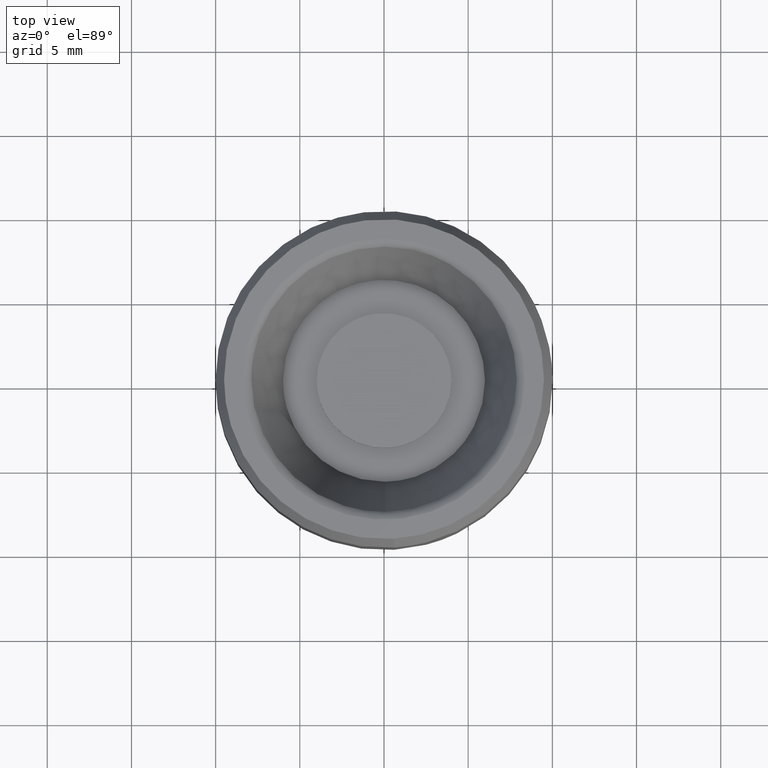
[diagram: clean part render]
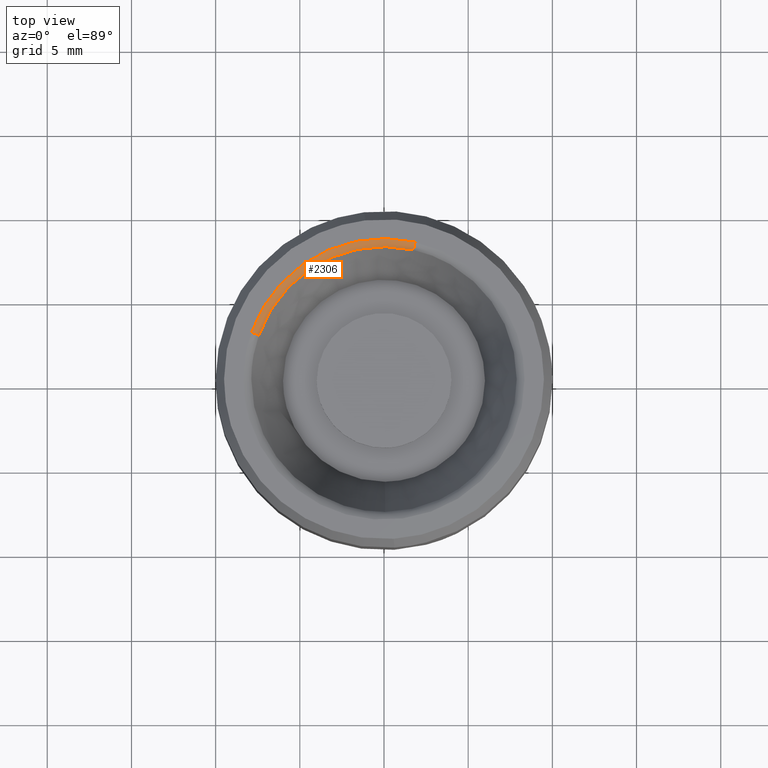
[diagram: same view with one face highlighted and labeled with its STEP entity id]
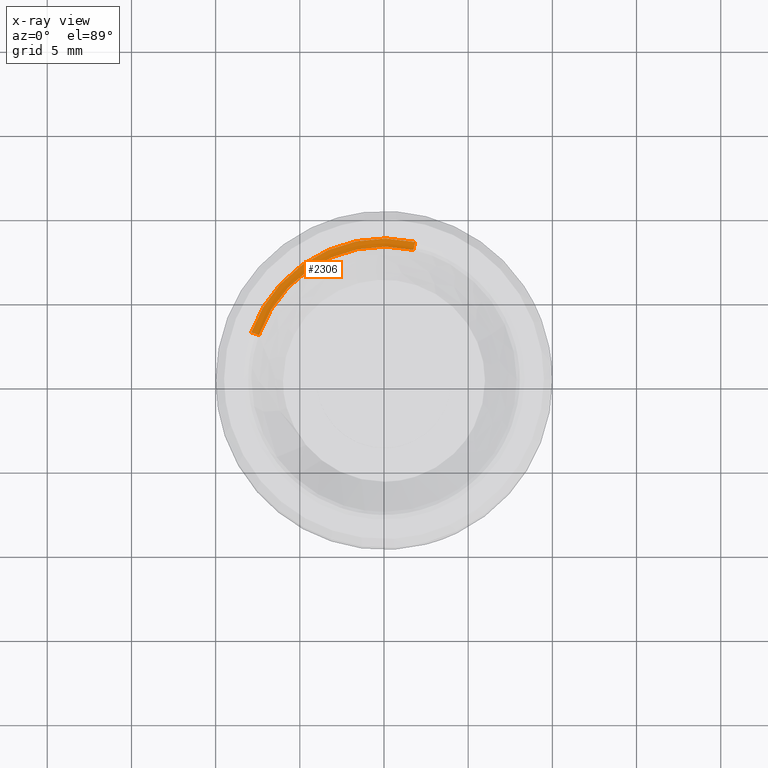
[diagram: x-ray of the same camera — body ghosted, the highlighted face saturated]
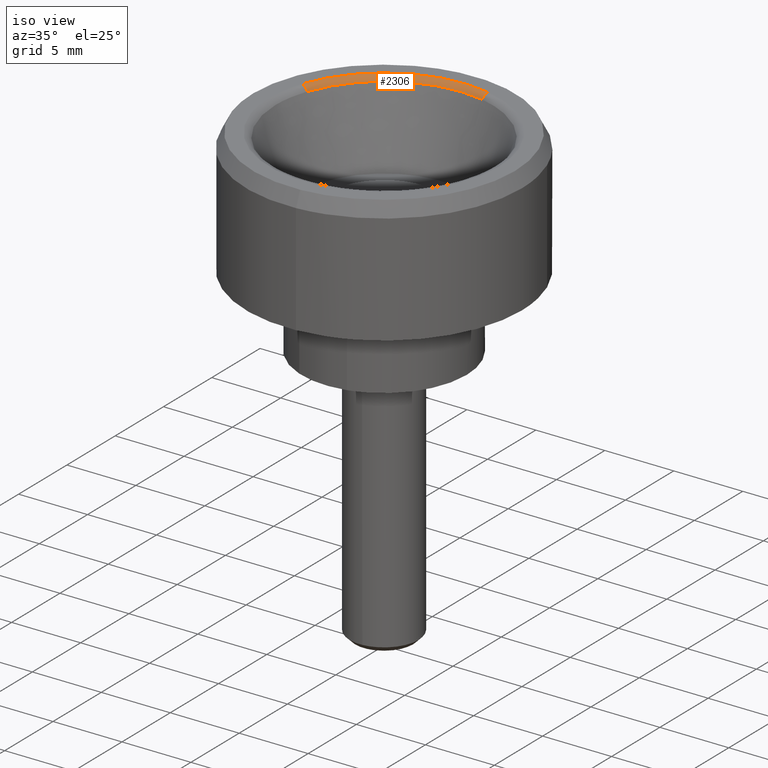
[diagram: same view with one face highlighted and labeled with its STEP entity id]
A machine part, top view. The second image highlights one B-rep face of the part: STEP entity #2306.
The next image is the same camera in x-ray: the body ghosted, the highlighted face saturated — about 0% of this face is hidden behind the body in this view.
A second angle (iso view) of the same face is appended — the face is thin or edge-on in the first view.
In plain terms, the highlighted face is a freeform B-spline surface patch.
Its self-contained STEP definition (entity closure, byte-faithful):
#684=CARTESIAN_POINT('',(1.747159656468593,7.684193380239639,14.670871531827229));
#685=VERTEX_POINT('',#684);
#699=CARTESIAN_POINT('',(-7.431064276170545,2.622723488301546,14.670871532273310));
#700=VERTEX_POINT('',#699);
#701=CARTESIAN_POINT('',(1.747159656468594,7.684193380239639,14.670871531827231));
#702=CARTESIAN_POINT('',(0.884587535209432,7.880316920561219,14.670871531543437));
#703=CARTESIAN_POINT('',(0.0,7.880316920561219,14.670871531543440));
#704=CARTESIAN_POINT('',(-5.575446658499355,7.880316920561218,14.670871531543439));
#705=CARTESIAN_POINT('',(-7.431064276170544,2.622723488301546,14.670871532273308));
#713=(BOUNDED_CURVE()B_SPLINE_CURVE(2,(#701,#702,#703,#704,#705),.UNSPECIFIED.,.F.,.U.)B_SPLINE_CURVE_WITH_KNOTS((3,2,3),(0.712075985374197,0.750000000000000,0.943451214484055),.UNSPECIFIED.)CURVE()GEOMETRIC_REPRESENTATION_ITEM()RATIONAL_B_SPLINE_CURVE((0.924618444636276,0.955569253143680,1.0,0.773357804425575,0.897469272748791))REPRESENTATION_ITEM(''));
#714=EDGE_CURVE('',#685,#700,#713,.T.);
#2191=CARTESIAN_POINT('',(-7.874172427045540,2.779114297499475,15.0));
#2192=VERTEX_POINT('',#2191);
#2193=CARTESIAN_POINT('',(-7.431064276170545,2.622723488301546,14.670871532273313));
#2194=CARTESIAN_POINT('',(-7.543924287782197,2.662556356409521,14.999999998680599));
#2195=CARTESIAN_POINT('',(-7.874172427045540,2.779114297499475,15.000000000000004));
#2203=(BOUNDED_CURVE()B_SPLINE_CURVE(2,(#2193,#2194,#2195),.UNSPECIFIED.,.F.,.U.)B_SPLINE_CURVE_WITH_KNOTS((3,3),(-1.672020088382184,-0.331586708002150),.UNSPECIFIED.)CURVE()GEOMETRIC_REPRESENTATION_ITEM()RATIONAL_B_SPLINE_CURVE((0.900583652010158,0.737279750788888,0.899707184281507))REPRESENTATION_ITEM(''));
#2204=EDGE_CURVE('',#700,#2192,#2203,.T.);
#2238=CARTESIAN_POINT('',(1.851341326446082,8.142395408669891,15.0));
#2239=VERTEX_POINT('',#2238);
#2253=CARTESIAN_POINT('',(1.747159656468593,7.684193380239639,14.670871531827228));
#2254=CARTESIAN_POINT('',(1.773694813654353,7.800897814469852,14.999999999412507));
#2255=CARTESIAN_POINT('',(1.851341326446081,8.142395408669893,15.000000000000004));
#2263=(BOUNDED_CURVE()B_SPLINE_CURVE(2,(#2253,#2254,#2255),.UNSPECIFIED.,.F.,.U.)B_SPLINE_CURVE_WITH_KNOTS((3,3),(-1.672020090601311,-0.331586705561869),.UNSPECIFIED.)CURVE()GEOMETRIC_REPRESENTATION_ITEM()RATIONAL_B_SPLINE_CURVE((0.861755995395365,0.705492758211166,0.860917315641286))REPRESENTATION_ITEM(''));
#2264=EDGE_CURVE('',#685,#2239,#2263,.T.);
#2269=CARTESIAN_POINT('',(-7.422637743951070,2.619749423849566,14.643941884478929));
#2270=CARTESIAN_POINT('',(-5.089772623766865,9.229546733082819,14.643941884478926));
#2271=CARTESIAN_POINT('',(1.745178446730924,7.675479809806876,14.643941884478927));
#2272=CARTESIAN_POINT('',(-7.529688978275857,2.657532139255997,15.021584452771773));
#2273=CARTESIAN_POINT('',(-5.163178663587518,9.362657684218755,15.021584452771769));
#2274=CARTESIAN_POINT('',(1.770347869419214,7.786177598924285,15.021584452771778));
#2275=CARTESIAN_POINT('',(-7.900944778945128,2.788563344530259,14.999193305982212));
#2276=CARTESIAN_POINT('',(-5.417752263410705,9.824289098872862,14.999193305982210));
#2277=CARTESIAN_POINT('',(1.857635925754692,8.170079723830334,14.999193305982217));
#2285=(BOUNDED_SURFACE()B_SPLINE_SURFACE(2,2,((#2269,#2272,#2275),(#2270,#2273,#2276),(#2271,#2274,#2277)),.UNSPECIFIED.,.F.,.F.,.U.)B_SPLINE_SURFACE_WITH_KNOTS((3,3),(3,3),(0.0,12.757547769264111),(0.0,0.693772228386018),.UNSPECIFIED.)GEOMETRIC_REPRESENTATION_ITEM()RATIONAL_B_SPLINE_SURFACE(((0.917710306490396,0.720196847649866,0.916746335806349),(0.670422470932644,0.526131336593393,0.669718253486970),(0.878144252801156,0.689146365880830,0.877221842635248)))REPRESENTATION_ITEM('')SURFACE());
#2286=ORIENTED_EDGE('',*,*,#714,.F.);
#2287=ORIENTED_EDGE('',*,*,#2264,.T.);
#2288=CARTESIAN_POINT('',(-7.874172427045540,2.779114297499475,14.999999999999996));
#2289=CARTESIAN_POINT('',(-5.907905882849408,8.350213632305444,14.999999999999995));
#2290=CARTESIAN_POINT('',(0.0,8.350213632305442,15.0));
#2291=CARTESIAN_POINT('',(0.937334750636859,8.350213632305442,14.999999999999996));
#2292=CARTESIAN_POINT('',(1.851341326446082,8.142395408669891,14.999999999999998));
#2300=(BOUNDED_CURVE()B_SPLINE_CURVE(2,(#2288,#2289,#2290,#2291,#2292),.UNSPECIFIED.,.F.,.U.)B_SPLINE_CURVE_WITH_KNOTS((3,2,3),(0.056548785516883,0.250000000000000,0.287924014626787),.UNSPECIFIED.)CURVE()GEOMETRIC_REPRESENTATION_ITEM()RATIONAL_B_SPLINE_CURVE((0.897469272747588,0.773357804426673,1.0,0.955569253142528,0.924618444634671))REPRESENTATION_ITEM(''));
#2301=EDGE_CURVE('',#2192,#2239,#2300,.T.);
#2302=ORIENTED_EDGE('',*,*,#2301,.F.);
#2303=ORIENTED_EDGE('',*,*,#2204,.F.);
#2304=EDGE_LOOP('',(#2286,#2287,#2302,#2303));
#2305=FACE_OUTER_BOUND('',#2304,.T.);
#2306=ADVANCED_FACE('',(#2305),#2285,.T.);